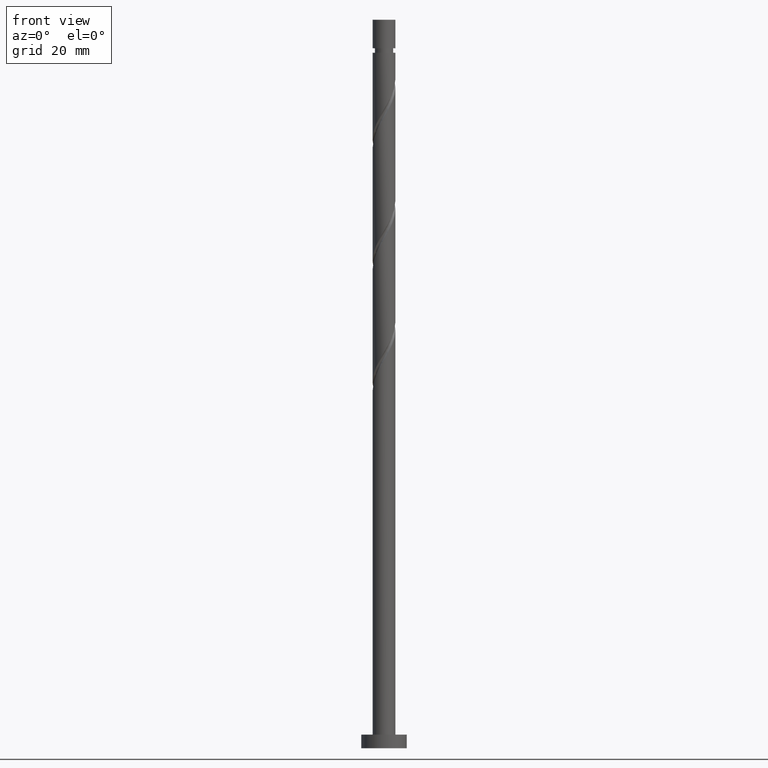
[diagram: clean part render]
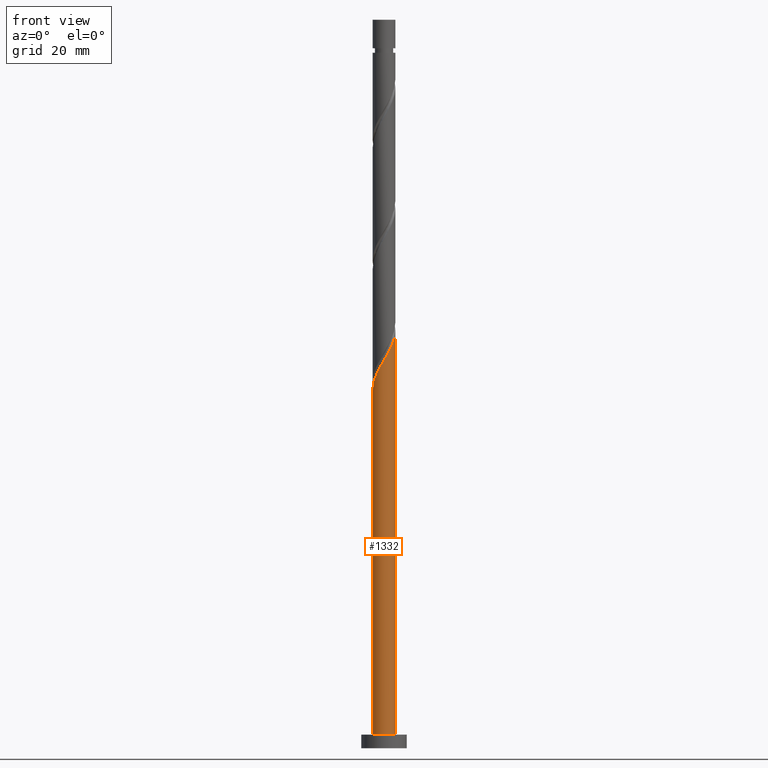
[diagram: same view with one face highlighted and labeled with its STEP entity id]
A machine part, front view. The second image highlights one B-rep face of the part: STEP entity #1332.
In plain terms, the highlighted cylindrical surface (edge-blend (fillet) strip) has radius 2.5 mm, axis along (-0, -0, -1).
Its self-contained STEP definition (entity closure, byte-faithful):
#9 = CARTESIAN_POINT ( 'NONE',  ( 1.743088351060510188, -1.792105744758709873, 88.49717492109849104 ) ) ;
#47 = LINE ( 'NONE', #186, #1451 ) ;
#77 = CARTESIAN_POINT ( 'NONE',  ( -1.810534374112179989, -1.761012923450278045, 81.83050825443184806 ) ) ;
#102 = CARTESIAN_POINT ( 'NONE',  ( 0.4974937185533107042, -2.450000000000004174, 86.07293249685609737 ) ) ;
#158 = ORIENTED_EDGE ( 'NONE', *, *, #548, .T. ) ;
#186 = CARTESIAN_POINT ( 'NONE',  ( -2.500000000000000000, 0.000000000000000000, 160.0000000000000000 ) ) ;
#192 = EDGE_CURVE ( 'NONE', #819, #687, #263, .T. ) ;
#217 = CARTESIAN_POINT ( 'NONE',  ( 2.500000000000000000, 3.061616997868383141E-16, 160.0000000000000000 ) ) ;
#263 = CIRCLE ( 'NONE', #642, 2.500000000000000000 ) ;
#280 = CARTESIAN_POINT ( 'NONE',  ( 2.500000000000000000, 3.061616997868383141E-16, 3.000000000000000000 ) ) ;
#317 = DIRECTION ( 'NONE',  ( -1.000000000000000000, 0.000000000000000000, 0.000000000000000000 ) ) ;
#327 = CARTESIAN_POINT ( 'NONE',  ( -2.233329684002606896, -1.179593048026944091, 80.61838704231065833 ) ) ;
#335 = DIRECTION ( 'NONE',  ( -0.000000000000000000, -0.000000000000000000, -1.000000000000000000 ) ) ;
#344 = CARTESIAN_POINT ( 'NONE',  ( -2.500000000000000000, 0.000000000000000000, 3.000000000000000000 ) ) ;
#361 = CARTESIAN_POINT ( 'NONE',  ( -0.5710429720501328799, -2.460307127265380256, 84.25475067867428436 ) ) ;
#441 = ORIENTED_EDGE ( 'NONE', *, *, #192, .T. ) ;
#455 = CARTESIAN_POINT ( 'NONE',  ( -2.475193905018193252, -0.5026095591624447634, 79.40626583018944018 ) ) ;
#513 = CARTESIAN_POINT ( 'NONE',  ( -1.525797355502945374, -1.980389464206532057, 82.43656886049245713 ) ) ;
#524 = CARTESIAN_POINT ( 'NONE',  ( 2.500000000000003997, 1.839688946530046523E-15, 91.89014468422186610 ) ) ;
#542 = ORIENTED_EDGE ( 'NONE', *, *, #1456, .F. ) ;
#548 = EDGE_CURVE ( 'NONE', #1322, #819, #47, .T. ) ;
#565 = DIRECTION ( 'NONE',  ( -0.000000000000000000, -0.000000000000000000, -1.000000000000000000 ) ) ;
#586 = CARTESIAN_POINT ( 'NONE',  ( 0.000000000000000000, 0.000000000000000000, 3.000000000000000000 ) ) ;
#615 = CARTESIAN_POINT ( 'NONE',  ( -1.241060336893711646, -2.199766004962788291, 83.04262946655309463 ) ) ;
#632 = CARTESIAN_POINT ( 'NONE',  ( 0.1452368982656257745, -2.521528798126813964, 85.46687189079548830 ) ) ;
#640 = CARTESIAN_POINT ( 'NONE',  ( 2.435264748179753802, -0.5652305779706356947, 90.92141734534092734 ) ) ;
#642 = AXIS2_PLACEMENT_3D ( 'NONE', #586, #1253, #1635 ) ;
#687 = VERTEX_POINT ( 'NONE', #280 ) ;
#711 = CARTESIAN_POINT ( 'NONE',  ( -2.500000000000003553, 5.055405397781753783E-15, 78.55681135088849487 ) ) ;
#768 = ORIENTED_EDGE ( 'NONE', *, *, #1278, .F. ) ;
#819 = VERTEX_POINT ( 'NONE', #344 ) ;
#851 = FACE_OUTER_BOUND ( 'NONE', #969, .T. ) ;
#875 = CARTESIAN_POINT ( 'NONE',  ( 2.177375558832925329, -1.228428132125369387, 89.70929613321975182 ) ) ;
#892 = CARTESIAN_POINT ( 'NONE',  ( -0.9060516544719224852, -2.330036566114084273, 83.64869007261368949 ) ) ;
#969 = EDGE_LOOP ( 'NONE', ( #768, #542, #158, #441 ) ) ;
#970 = CARTESIAN_POINT ( 'NONE',  ( -2.354261794510399408, -0.8411013035946942606, 80.01232643625002083 ) ) ;
#974 = AXIS2_PLACEMENT_3D ( 'NONE', #1111, #1630, #317 ) ;
#1026 = CARTESIAN_POINT ( 'NONE',  ( 0.8497505388409959393, -2.378471201873194385, 86.67899310291670645 ) ) ;
#1096 = CARTESIAN_POINT ( 'NONE',  ( -2.500000000000004441, -0.07193881630955240025, 78.67890935560673427 ) ) ;
#1103 = CYLINDRICAL_SURFACE ( 'NONE', #974, 2.500000000000000000 ) ;
#1111 = CARTESIAN_POINT ( 'NONE',  ( 0.000000000000000000, 0.000000000000000000, 160.0000000000000000 ) ) ;
#1133 = CARTESIAN_POINT ( 'NONE',  ( 1.485422444420512189, -2.042724014156701795, 87.89111431503793881 ) ) ;
#1148 = CARTESIAN_POINT ( 'NONE',  ( 2.353996859965343802, -0.9153687888900189362, 90.31535673928034669 ) ) ;
#1207 = VERTEX_POINT ( 'NONE', #524 ) ;
#1253 = DIRECTION ( 'NONE',  ( 0.000000000000000000, 0.000000000000000000, 1.000000000000000000 ) ) ;
#1260 = CARTESIAN_POINT ( 'NONE',  ( 1.167586491630753454, -2.210597608014948090, 87.28505370897728710 ) ) ;
#1267 = CARTESIAN_POINT ( 'NONE',  ( 2.500000000000004441, 1.839688946530046523E-15, 91.89014468422186610 ) ) ;
#1273 = CARTESIAN_POINT ( 'NONE',  ( -0.2129030368922535665, -2.490917962696097554, 84.86081128473487922 ) ) ;
#1278 = EDGE_CURVE ( 'NONE', #1207, #687, #1501, .T. ) ;
#1280 = CARTESIAN_POINT ( 'NONE',  ( 2.000754257700509076, -1.541487475360719284, 89.10323552715914275 ) ) ;
#1301 =( BOUNDED_CURVE ( )  B_SPLINE_CURVE ( 2, ( #711, #1096, #1614, #455, #970, #327, #1358, #77, #513, #615, #892, #361, #1273, #632, #102, #1026, #1260, #1133, #9, #1280, #875, #1148, #640, #1532, #1267 ),
 .UNSPECIFIED., .F., .T. ) 
 B_SPLINE_CURVE_WITH_KNOTS ( ( 3, 2, 2, 2, 2, 2, 2, 2, 2, 2, 2, 2, 3 ),
 ( 0.05452521624175117598, 0.05681818181818176772, 0.06818181818181823228, 0.07954545454545458583, 0.09090909090909093937, 0.1022727272727272929, 0.1136363636363636465, 0.1250000000000000000, 0.1363636363636363535, 0.1477272727272727071, 0.1590909090909090606, 0.1704545454545454142, 0.1795252162417512731 ),
 .UNSPECIFIED. ) 
 CURVE ( )  GEOMETRIC_REPRESENTATION_ITEM ( )  RATIONAL_B_SPLINE_CURVE ( ( 0.9061101570135663419, 0.9072237824201485612, 0.9090909090909261581, 0.8998376744372282854, 0.9090909090909261581, 0.8998376744372282854, 0.9090909090909261581, 0.8998376744372282854, 0.9090909090909261581, 0.8998376744372282854, 0.9090909090909261581, 0.8998376744372282854, 0.9090909090909261581, 0.8998376744372282854, 0.9090909090909261581, 0.8998376744372282854, 0.9090909090909261581, 0.8998376744372282854, 0.9090909090909261581, 0.8998376744372282854, 0.9090909090909261581, 0.8998376744372282854, 0.9090909090909261581, 0.9017048011080058822, 0.9061101570135664529 ) ) 
 REPRESENTATION_ITEM ( '' )  );
#1322 = VERTEX_POINT ( 'NONE', #1605 ) ;
#1332 = ADVANCED_FACE ( 'NONE', ( #851 ), #1103, .T. ) ;
#1358 = CARTESIAN_POINT ( 'NONE',  ( -2.021932029057393443, -1.470302985738610513, 81.22444764837128162 ) ) ;
#1451 = VECTOR ( 'NONE', #565, 1000.000000000000000 ) ;
#1456 = EDGE_CURVE ( 'NONE', #1322, #1207, #1301, .T. ) ;
#1501 = LINE ( 'NONE', #217, #1593 ) ;
#1532 = CARTESIAN_POINT ( 'NONE',  ( 2.500000000000004441, -0.2863223184628082563, 91.40418473125053822 ) ) ;
#1593 = VECTOR ( 'NONE', #335, 1000.000000000000000 ) ;
#1605 = CARTESIAN_POINT ( 'NONE',  ( -2.500000000000003553, 5.055405397781753783E-15, 78.55681135088849487 ) ) ;
#1614 = CARTESIAN_POINT ( 'NONE',  ( -2.495863270706177861, -0.1437585960555961828, 78.80020522412880268 ) ) ;
#1630 = DIRECTION ( 'NONE',  ( -0.000000000000000000, -0.000000000000000000, -1.000000000000000000 ) ) ;
#1635 = DIRECTION ( 'NONE',  ( 1.000000000000000000, 0.000000000000000000, 0.000000000000000000 ) ) ;